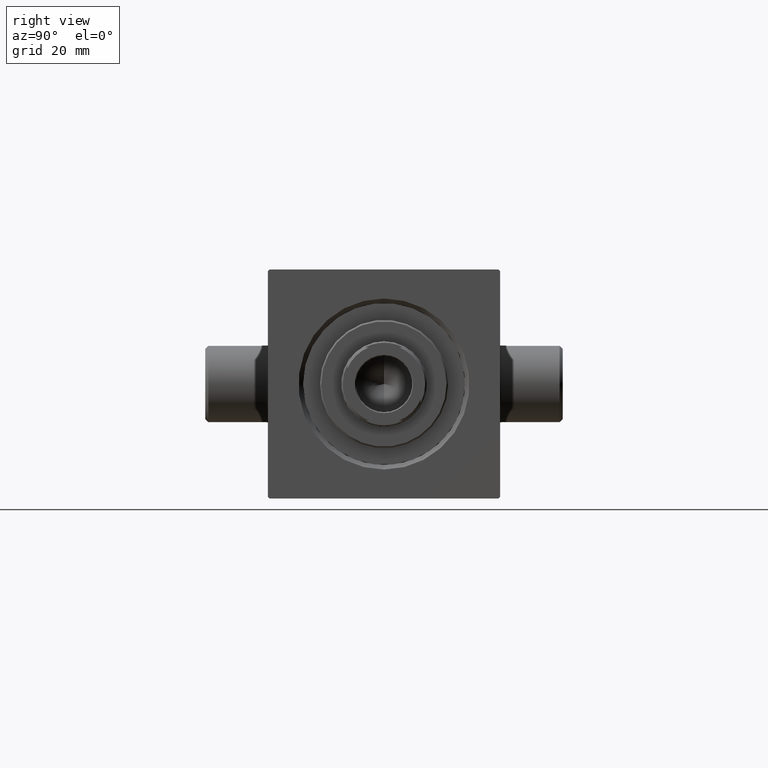
[diagram: clean part render]
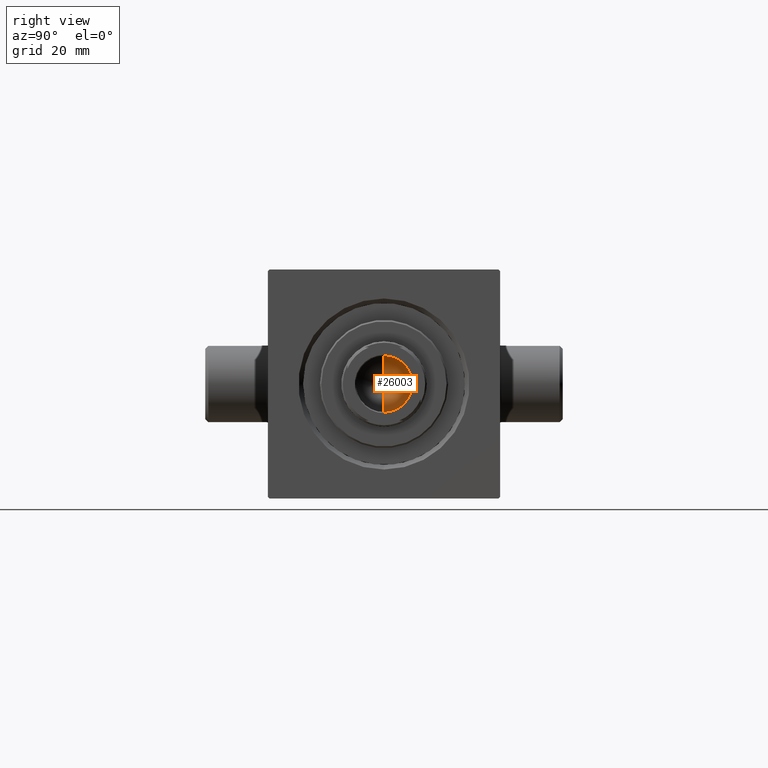
[diagram: same view with one face highlighted and labeled with its STEP entity id]
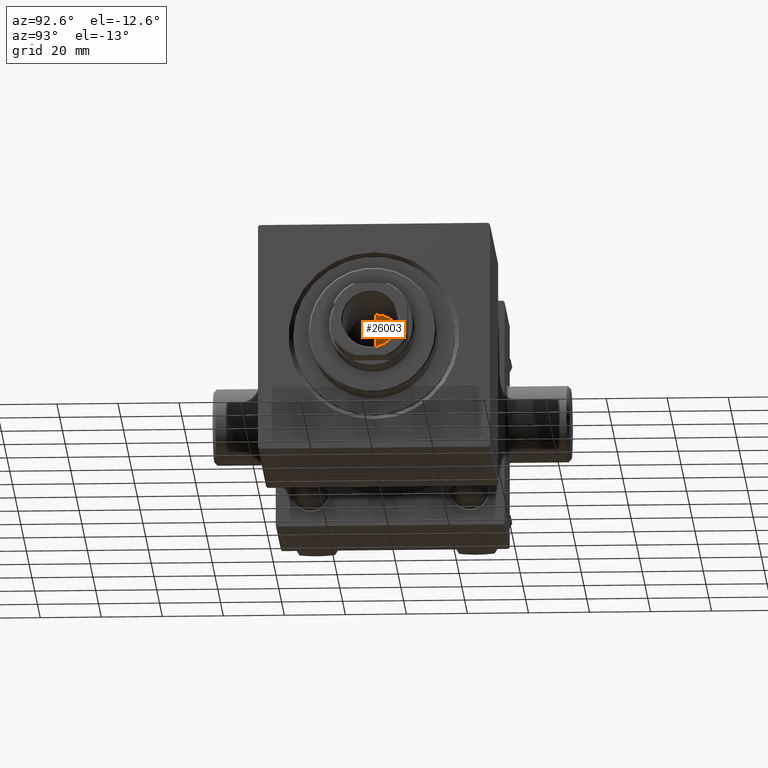
[diagram: same view with one face highlighted and labeled with its STEP entity id]
A machine part, right view. The second image highlights one B-rep face of the part: STEP entity #26003.
A second angle (auxiliary view) of the same face is appended — the face is thin or edge-on in the first view.
In plain terms, the highlighted conical surface has half-angle 59 deg.
Its self-contained STEP definition (entity closure, byte-faithful):
#649 = LINE ( 'NONE', #40169, #1384 ) ;
#1384 = VECTOR ( 'NONE', #29654, 1000.000000000000000 ) ;
#3951 = ORIENTED_EDGE ( 'NONE', *, *, #17511, .T. ) ;
#6186 = AXIS2_PLACEMENT_3D ( 'NONE', #40768, #37243, #26738 ) ;
#8484 = VECTOR ( 'NONE', #21298, 1000.000000000000000 ) ;
#9475 = VERTEX_POINT ( 'NONE', #17159 ) ;
#10549 = LINE ( 'NONE', #21518, #8484 ) ;
#12102 = EDGE_LOOP ( 'NONE', ( #12351, #3951, #43621 ) ) ;
#12351 = ORIENTED_EDGE ( 'NONE', *, *, #34325, .F. ) ;
#14305 = AXIS2_PLACEMENT_3D ( 'NONE', #40129, #18394, #32425 ) ;
#17159 = CARTESIAN_POINT ( 'NONE',  ( -9.249999999999992895, 1.132798289211300712E-15, 107.0000000000000142 ) ) ;
#17511 = EDGE_CURVE ( 'NONE', #43053, #9475, #649, .T. ) ;
#18126 = CIRCLE ( 'NONE', #6186, 9.249999999999992895 ) ;
#18394 = DIRECTION ( 'NONE',  ( -0.000000000000000000, -0.000000000000000000, 1.000000000000000000 ) ) ;
#21298 = DIRECTION ( 'NONE',  ( 0.8571673007021117785, 0.000000000000000000, 0.5150380749100550437 ) ) ;
#21518 = CARTESIAN_POINT ( 'NONE',  ( 9.249999999999992895, 0.000000000000000000, 107.0000000000000142 ) ) ;
#26003 = ADVANCED_FACE ( 'NONE', ( #29616 ), #45708, .F. ) ;
#26738 = DIRECTION ( 'NONE',  ( 1.000000000000000000, 0.000000000000000000, 0.000000000000000000 ) ) ;
#29616 = FACE_OUTER_BOUND ( 'NONE', #12102, .T. ) ;
#29654 = DIRECTION ( 'NONE',  ( -0.8571673007021117785, 1.049727191138617956E-16, 0.5150380749100550437 ) ) ;
#31183 = CARTESIAN_POINT ( 'NONE',  ( -9.769621978240258809E-15, 0.000000000000000000, 101.4420392739950785 ) ) ;
#31976 = EDGE_CURVE ( 'NONE', #9475, #33458, #18126, .T. ) ;
#32425 = DIRECTION ( 'NONE',  ( 1.000000000000000000, 0.000000000000000000, 0.000000000000000000 ) ) ;
#33458 = VERTEX_POINT ( 'NONE', #36453 ) ;
#34325 = EDGE_CURVE ( 'NONE', #43053, #33458, #10549, .T. ) ;
#36453 = CARTESIAN_POINT ( 'NONE',  ( 9.249999999999992895, 0.000000000000000000, 107.0000000000000142 ) ) ;
#37243 = DIRECTION ( 'NONE',  ( -0.000000000000000000, -0.000000000000000000, 1.000000000000000000 ) ) ;
#40129 = CARTESIAN_POINT ( 'NONE',  ( 0.000000000000000000, 0.000000000000000000, 107.0000000000000142 ) ) ;
#40169 = CARTESIAN_POINT ( 'NONE',  ( -9.249999999999992895, 1.132798289211300712E-15, 107.0000000000000142 ) ) ;
#40768 = CARTESIAN_POINT ( 'NONE',  ( 0.000000000000000000, 0.000000000000000000, 107.0000000000000142 ) ) ;
#43053 = VERTEX_POINT ( 'NONE', #31183 ) ;
#43621 = ORIENTED_EDGE ( 'NONE', *, *, #31976, .T. ) ;
#45708 = CONICAL_SURFACE ( 'NONE', #14305, 9.249999999999992895, 1.029744258676653423 ) ;